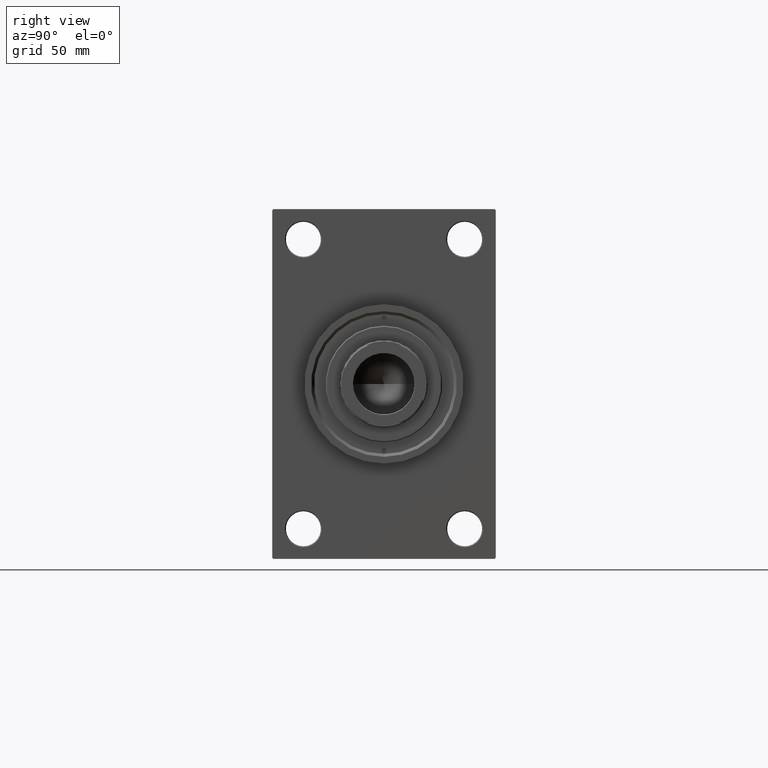
[diagram: clean part render]
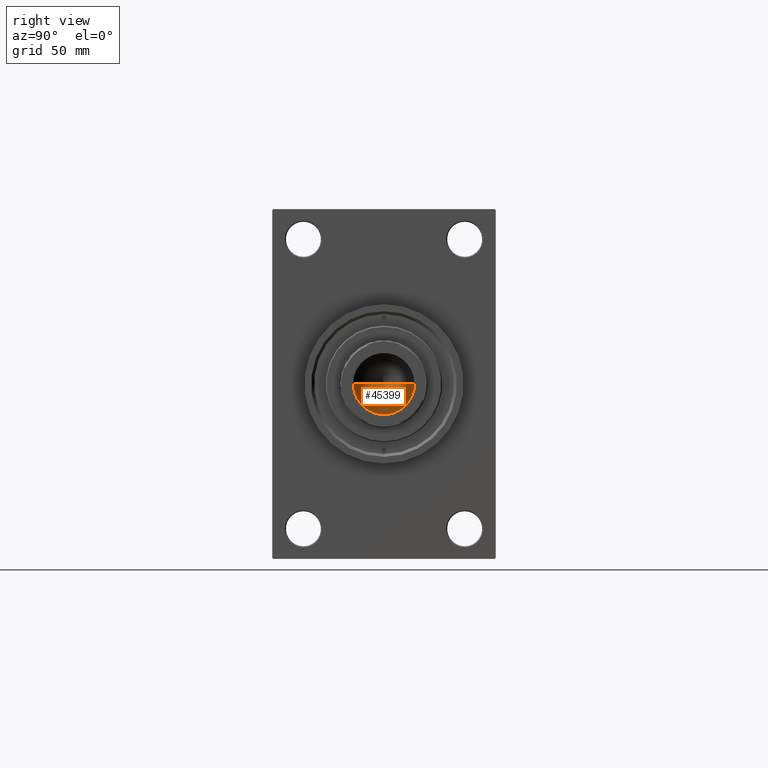
[diagram: same view with one face highlighted and labeled with its STEP entity id]
A machine part, right view. The second image highlights one B-rep face of the part: STEP entity #45399.
In plain terms, the highlighted conical surface has half-angle 59 deg.
Its self-contained STEP definition (entity closure, byte-faithful):
#4890 = CARTESIAN_POINT ( 'NONE',  ( 15.74999999999998934, 0.000000000000000000, 191.0000000000000000 ) ) ;
#9644 = EDGE_LOOP ( 'NONE', ( #30164, #43092, #34698 ) ) ;
#11689 = EDGE_CURVE ( 'NONE', #25504, #28595, #34434, .T. ) ;
#12480 = CARTESIAN_POINT ( 'NONE',  ( 0.000000000000000000, 0.000000000000000000, 191.0000000000000000 ) ) ;
#13509 = AXIS2_PLACEMENT_3D ( 'NONE', #12480, #42493, #23354 ) ;
#16624 = CIRCLE ( 'NONE', #13509, 15.74999999999998934 ) ;
#16989 = VECTOR ( 'NONE', #47662, 1000.000000000000000 ) ;
#20129 = DIRECTION ( 'NONE',  ( 0.8571673007021112234, 0.000000000000000000, 0.5150380749100560429 ) ) ;
#23354 = DIRECTION ( 'NONE',  ( 1.000000000000000000, 0.000000000000000000, 0.000000000000000000 ) ) ;
#25151 = CARTESIAN_POINT ( 'NONE',  ( 0.000000000000000000, 0.000000000000000000, 191.0000000000000000 ) ) ;
#25504 = VERTEX_POINT ( 'NONE', #31714 ) ;
#26664 = AXIS2_PLACEMENT_3D ( 'NONE', #25151, #32902, #29740 ) ;
#27877 = CARTESIAN_POINT ( 'NONE',  ( -15.74999999999998934, 1.928818708657080161E-15, 191.0000000000000000 ) ) ;
#28595 = VERTEX_POINT ( 'NONE', #31344 ) ;
#28887 = EDGE_CURVE ( 'NONE', #25504, #33110, #32178, .T. ) ;
#29740 = DIRECTION ( 'NONE',  ( 1.000000000000000000, 0.000000000000000000, 0.000000000000000000 ) ) ;
#30164 = ORIENTED_EDGE ( 'NONE', *, *, #28887, .F. ) ;
#31344 = CARTESIAN_POINT ( 'NONE',  ( 15.74999999999998934, 0.000000000000000000, 191.0000000000000000 ) ) ;
#31714 = CARTESIAN_POINT ( 'NONE',  ( -1.584115414415908206E-14, 0.000000000000000000, 181.5364452503158930 ) ) ;
#32178 = LINE ( 'NONE', #32892, #16989 ) ;
#32892 = CARTESIAN_POINT ( 'NONE',  ( -15.74999999999998934, 1.928818708657080161E-15, 191.0000000000000000 ) ) ;
#32902 = DIRECTION ( 'NONE',  ( -0.000000000000000000, -0.000000000000000000, 1.000000000000000000 ) ) ;
#33110 = VERTEX_POINT ( 'NONE', #27877 ) ;
#33140 = FACE_OUTER_BOUND ( 'NONE', #9644, .T. ) ;
#34434 = LINE ( 'NONE', #4890, #46339 ) ;
#34698 = ORIENTED_EDGE ( 'NONE', *, *, #45036, .T. ) ;
#42493 = DIRECTION ( 'NONE',  ( -0.000000000000000000, -0.000000000000000000, 1.000000000000000000 ) ) ;
#43092 = ORIENTED_EDGE ( 'NONE', *, *, #11689, .T. ) ;
#44482 = CONICAL_SURFACE ( 'NONE', #26664, 15.74999999999998934, 1.029744258676652313 ) ;
#45036 = EDGE_CURVE ( 'NONE', #28595, #33110, #16624, .T. ) ;
#45399 = ADVANCED_FACE ( 'NONE', ( #33140 ), #44482, .F. ) ;
#46339 = VECTOR ( 'NONE', #20129, 1000.000000000000000 ) ;
#47662 = DIRECTION ( 'NONE',  ( -0.8571673007021112234, 1.049727191138617340E-16, 0.5150380749100560429 ) ) ;